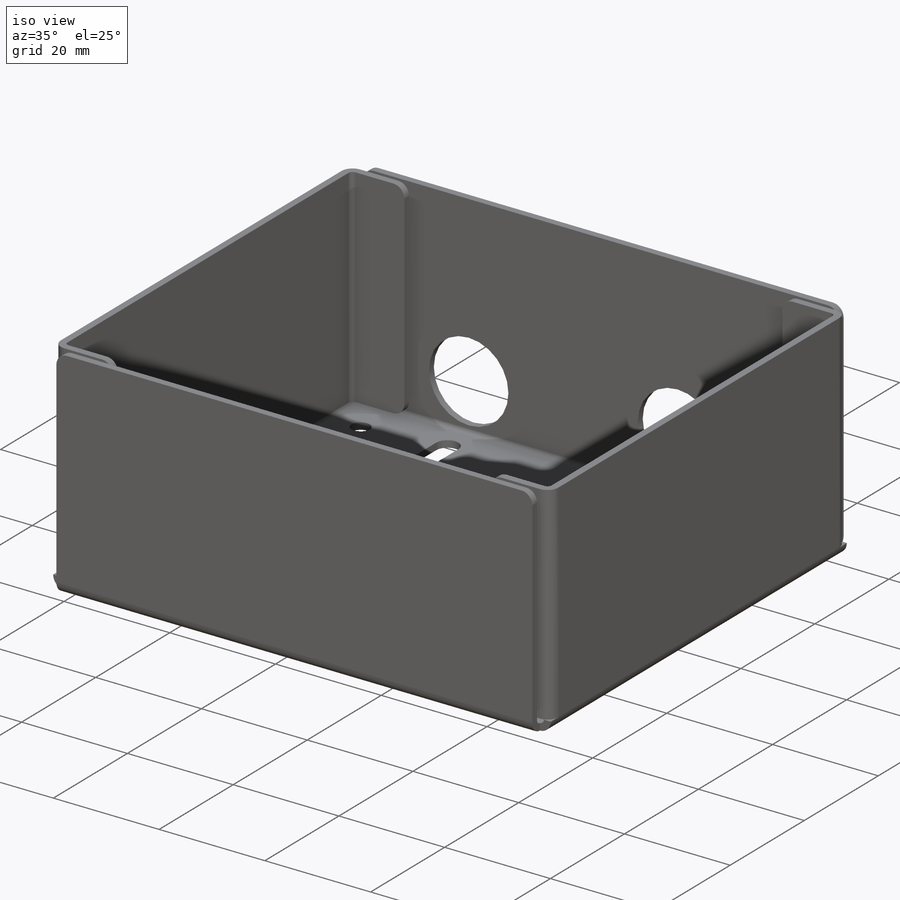
[diagram: iso view]
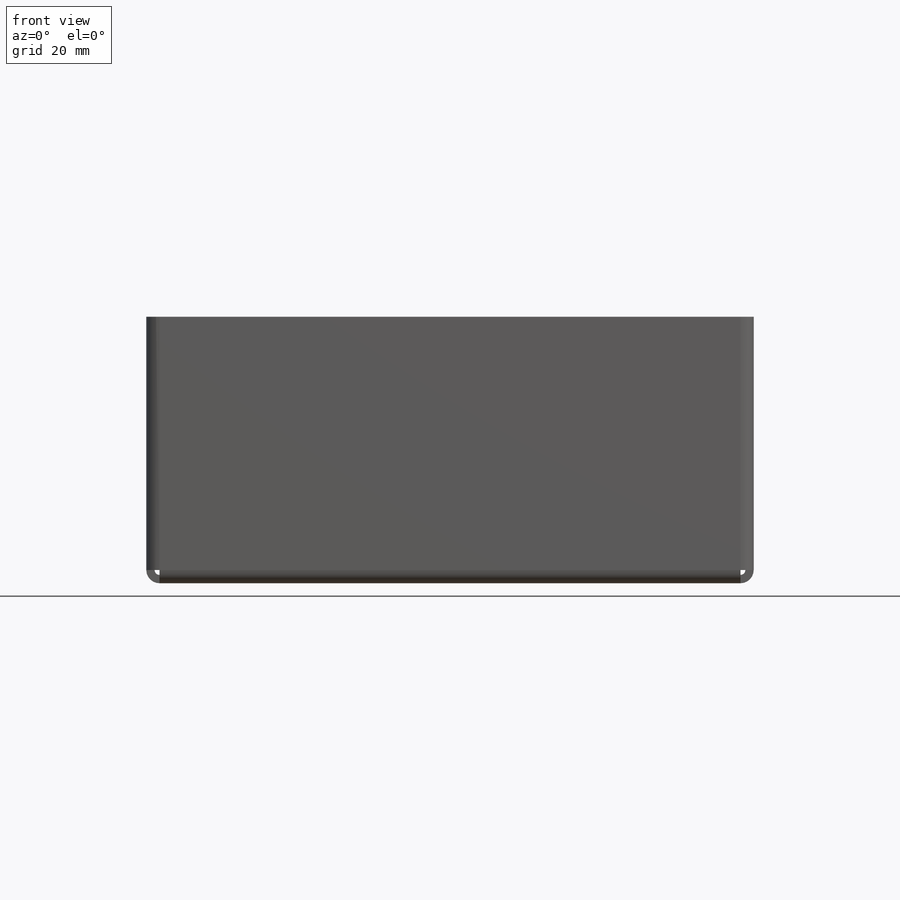
[diagram: front view]
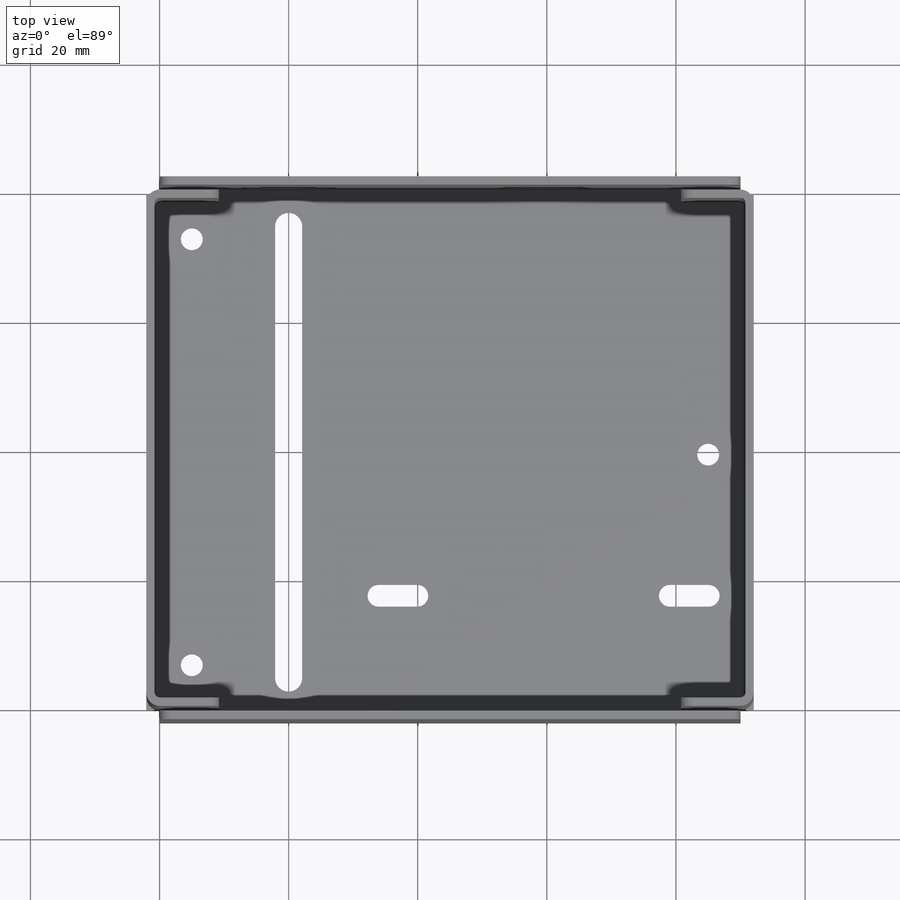
[diagram: top view]
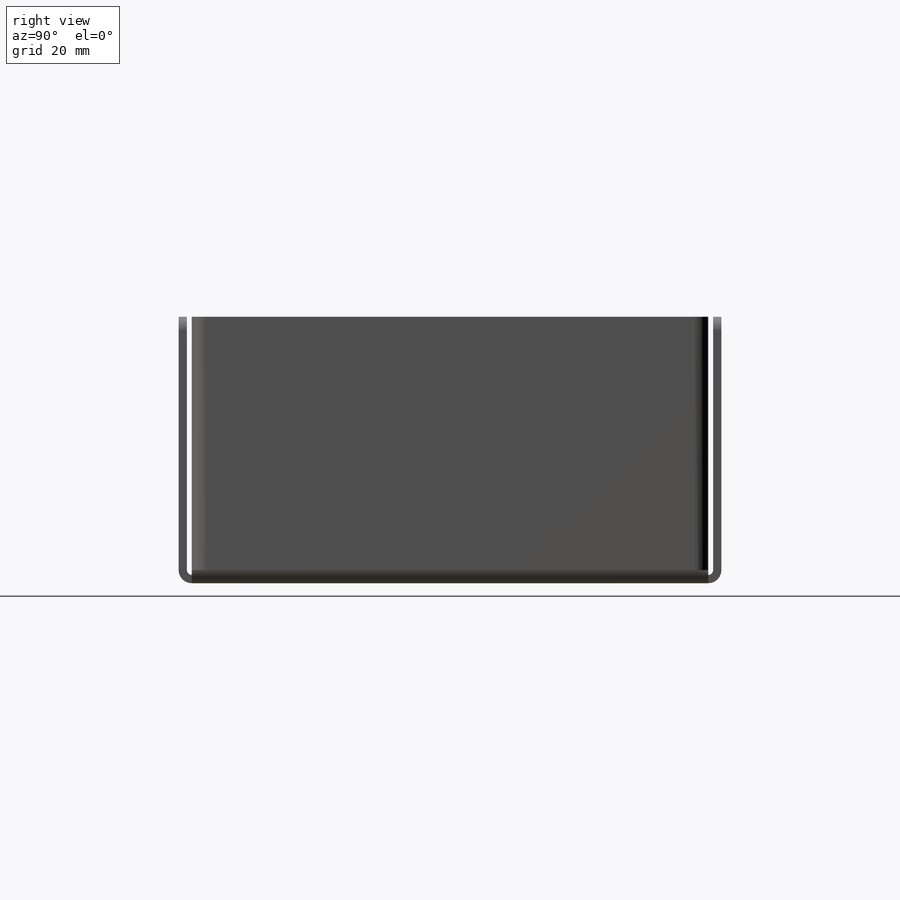
[diagram: right view]
SOLIDWORKS PART (.sldprt)
format: sldprt  version: not decoded by parser v0  size: 961,536 bytes
history: native  units: mm
features: sketch x48, mirror x14, fillet x14, sheet_metal_op x9, cut_extrude x4, hole x4, material x1, plane x1 + 52 further entries (+12 scaffold rows collapsed; 14 parser-record rows omitted)
feature tree (173):
  scaffold x12  (default folders/planes/origin — collapsed)
  material  "Material <not specified>"
  sketch  "Sketch1"  dims[c1.D1=~48.743766mm c1.D2=~73.328728mm c2.D1=80.0mm c2.D2=90.0mm c3.D1=0.762mm c3.D2=0.389 c3.D3=1.1938mm c3.D6=500.0mm]
  sheet_metal_op  "Base-Flange1"
  plane  "Mid"
  sketch  "Sketch8"  dims[c1.D1=0.762mm c1.D4=90.0deg c1.D5=1.0 c1.D8=0.645mm c1.D9=0.645mm c2.D1=0.762mm c2.D2=500.0mm c2.D3=0.0mm c2.D6=10.0mm c2.D7=40.0mm c2.Inward Facing Flange=0.0]
  sketch  "Sketch11"
  sheet_metal_op  "EdgeBend2"
  sketch  "Sketch12"  dims[D1=15.0mm D2=15.0mm D3=39.5mm D4=10.52mm D5=8.8mm D6=20.0mm]
  cut_extrude  "Gear Clearances"  [1 undecoded]
  hole  "Motor Holes"  Diameter=3.4mm Depth=12mm
  sketch  "Sketch14"  dims[c1.D1=8.0mm c1.D2=45.14mm c1.D3=63.0mm c1.D4=59.43mm c2.D1=59.5mm]
  sketch  "Sketch13"  dims[hole-wizard template sketch: 50 standard entries collapsed; hole parameters above]
  sketch  "Sketch15"  dims[D1=3.4mm D2=3.0mm D3=3.4mm D4=3.0mm]
  cut_extrude  "Motor Slots"  [1 undecoded]
  sketch  "Sketch16"  dims[c1.D1=4.2mm c1.D2=4.2mm c1.D3=4.2mm c1.D4=4.2mm c1.D5=4.2mm c1.D6=4.2mm c2.D3=12.76mm c2.D4=~3.296426mm c2.D7=12.76mm c2.D8=12.76mm c2.D2=4.0mm c2.D1=4.2mm c3.D2=5.0mm c3.D3=5.0mm c3.D4=20.0mm]
  cut_extrude  "Alignment Bracket Slot"  Depth=0 Edge-Flange1=0
  sketch  "Sketch19"
  sheet_metal_op  "EdgeBend3"  Edge-Flange2=0
  sketch  "Sketch22"
  sheet_metal_op  "EdgeBend4"  Edge-Flange3=0
  sketch  "Sketch25"
  sheet_metal_op  "EdgeBend5"
  hole  "M2 Clearance Hole1"  Diameter=2.4mm Depth=3.342mm
  sketch  "Sketch27"  dims[D1=10.0mm D2=10.0mm]
  sketch  "Sketch28"  dims[hole-wizard template sketch: 60 standard entries collapsed; hole parameters kept: c18.Thru Hole Depth=3.342mm]
  hole  "M2 Clearance Hole2"  Diameter=2.4mm Depth=3.342mm
  sketch  "Sketch30"  dims[D1=10.0mm D2=10.0mm]
  sketch  "Sketch29"  dims[hole-wizard template sketch: 60 standard entries collapsed; hole parameters kept: c18.Thru Hole Depth=3.342mm]
  mirror  "Mirror1"
  sheet_metal_op  "MirrorBend1"
  sheet_metal_op  "MirrorBend2"
  sheet_metal_op  "MirrorBend3"
  hole  "M3 Clearance Hole1"  Diameter=3.4mm Depth=1.29mm
  sketch  "Sketch36"  dims[D1=7.0mm D2=5.0mm D3=7.0mm D4=5.0mm]
  sketch  "Sketch37"  dims[hole-wizard template sketch: 60 standard entries collapsed; hole parameters kept: c18.Thru Hole Depth=1.29mm]
  fillet  "Fillet1"  Radius=2mm
  sketch  "Bend-Lines1"
  sketch  "Bounding-Box1"
  sketch  "Sketch33"  dims[D1=8.0mm]
  cut_extrude  "Cut-Extrude5"  [1 undecoded]
  sheet_metal_op  "Sheet-Metal(1)"
  "Flat-Pattern(1)"
  sketch  "Bend-Lines2"
  sketch  "Bounding-Box2"
  parser-record x14  (decoder bookkeeping rows leaked as tree rows — omitted from the tree; the rows remain in map.json)
  mirror  "Sheet-Metal(2)"
  fillet  "Flat-Pattern(1)"  [1 undecoded]
  sketch  "Bend-Lines2"
  sketch  "Bounding-Box2"
  mirror  "Sheet-Metal(3)"
  fillet  "Flat-Pattern(1)"  [1 undecoded]
  sketch  "Bend-Lines2"
  sketch  "Bounding-Box2"
  "Flatten-<EdgeBend1>1"
  "Flatten-<EdgeBend2>1"
  mirror  "Sheet-Metal(4)"
  fillet  "Flat-Pattern(1)"  [1 undecoded]
  sketch  "Bend-Lines2"
  sketch  "Bounding-Box2"
  "Flatten-<EdgeBend1>1"
  "Flatten-<EdgeBend2>1"
  mirror  "Sheet-Metal(5)"
  fillet  "Flat-Pattern(1)"  [1 undecoded]
  sketch  "Bend-Lines2"
  sketch  "Bounding-Box2"
  "Flatten-<EdgeBend1>1"
  "Flatten-<EdgeBend2>1"
  mirror  "Sheet-Metal(6)"
  fillet  "Flat-Pattern(1)"  [1 undecoded]
  sketch  "Bend-Lines2"
  sketch  "Bounding-Box2"
  "Flatten-<EdgeBend1>1"
  "Flatten-<EdgeBend2>1"
  mirror  "Sheet-Metal(7)"
  fillet  "Flat-Pattern(1)"  [1 undecoded]
  sketch  "Bend-Lines2"
  sketch  "Bounding-Box2"
  "Flatten-<EdgeBend1>1"
  "Flatten-<EdgeBend2>1"
  mirror  "Sheet-Metal(8)"
  fillet  "Flat-Pattern(1)"  [1 undecoded]
  sketch  "Bend-Lines2"
  sketch  "Bounding-Box2"
  "Flatten-<EdgeBend1>1"
  "Flatten-<EdgeBend2>1"
  "Flatten-<EdgeBend3>1"
  mirror  "Sheet-Metal(9)"
  fillet  "Flat-Pattern(1)"  [1 undecoded]
  sketch  "Bend-Lines2"
  sketch  "Bounding-Box2"
  "Flatten-<EdgeBend1>1"
  "Flatten-<EdgeBend2>1"
  "Flatten-<EdgeBend3>1"
  "Flatten-<EdgeBend4>1"
  mirror  "Sheet-Metal(10)"
  fillet  "Flat-Pattern(1)"  [1 undecoded]
  sketch  "Bend-Lines2"
  sketch  "Bounding-Box2"
  "Flatten-<EdgeBend1>1"
  "Flatten-<EdgeBend2>1"
  "Flatten-<EdgeBend3>1"
  "Flatten-<EdgeBend4>1"
  "Flatten-<EdgeBend5>1"
  mirror  "Sheet-Metal(11)"
  fillet  "Flat-Pattern(1)"  [1 undecoded]
  sketch  "Bend-Lines2"
  sketch  "Bounding-Box2"
  "Flatten-<EdgeBend1>1"
  "Flatten-<EdgeBend2>1"
  "Flatten-<EdgeBend3>1"
  "Flatten-<EdgeBend4>1"
  "Flatten-<EdgeBend5>1"
  "Flatten-<MirrorBend1>1"
  "Flatten-<MirrorBend2>1"
  "Flatten-<MirrorBend3>1"
  mirror  "Sheet-Metal(12)"
  fillet  "Flat-Pattern(1)"  [1 undecoded]
  sketch  "Bend-Lines2"
  sketch  "Bounding-Box2"
  "Flatten-<EdgeBend1>1"
  "Flatten-<EdgeBend2>1"
  "Flatten-<EdgeBend3>1"
  "Flatten-<EdgeBend4>1"
  "Flatten-<EdgeBend5>1"
  "Flatten-<MirrorBend1>1"
  "Flatten-<MirrorBend2>1"
  "Flatten-<MirrorBend3>1"
  mirror  "Sheet-Metal(13)"
  fillet  "Flat-Pattern(1)"  [1 undecoded]
  sketch  "Bend-Lines2"
  sketch  "Bounding-Box2"
  "Flatten-<EdgeBend1>1"
  "Flatten-<EdgeBend2>1"
  "Flatten-<EdgeBend3>1"
  "Flatten-<EdgeBend4>1"
  "Flatten-<EdgeBend5>1"
  mirror  "Sheet-Metal(16)"
  fillet  "Flat-Pattern(1)"  [1 undecoded]
  sketch  "Bend-Lines2"
  sketch  "Bounding-Box2"
  "Flatten-<EdgeBend1>1"
  "Flatten-<EdgeBend2>1"
  "Flatten-<EdgeBend3>1"
  "Flatten-<EdgeBend4>1"
  "Flatten-<EdgeBend5>1"
  "Flatten-<MirrorBend1>1"
  "Flatten-<MirrorBend2>1"
  "Flatten-<MirrorBend3>1"
decode coverage: 22 of 93 modeling features carry decoded parameters; 52 rows unclassified (native names shown)
note: ~ marks probable driven/reference dimensions
note: 16 parameter values undecoded
summary: no parameter record found for 16 features; Diameter pulled from absorbed wizard sketch
note: suppression state not decoded; provenance and decode notes live in map.json
